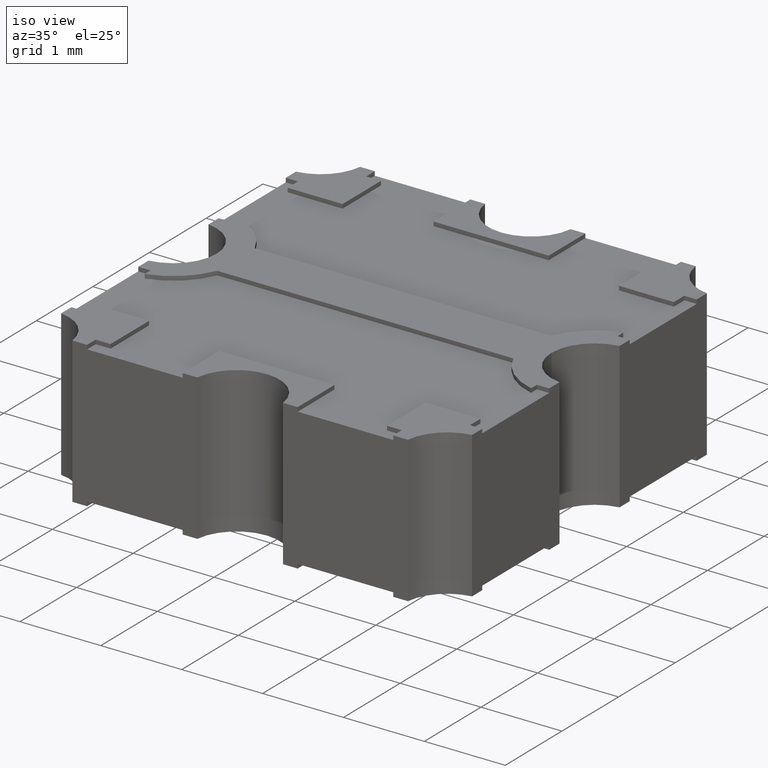
[diagram: clean part render]
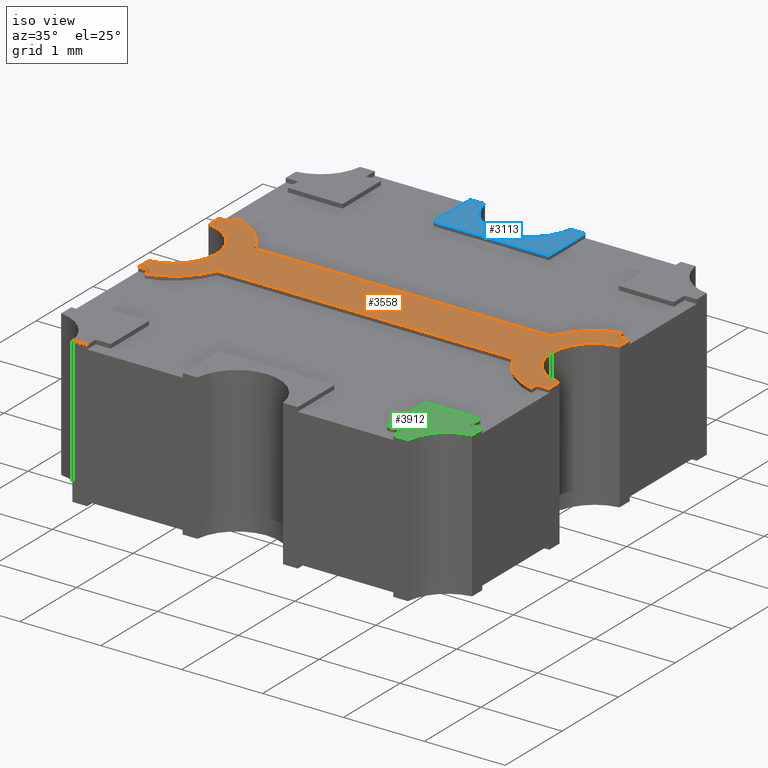
[diagram: same view with three faces highlighted in distinct colors, each labeled with its STEP entity id]
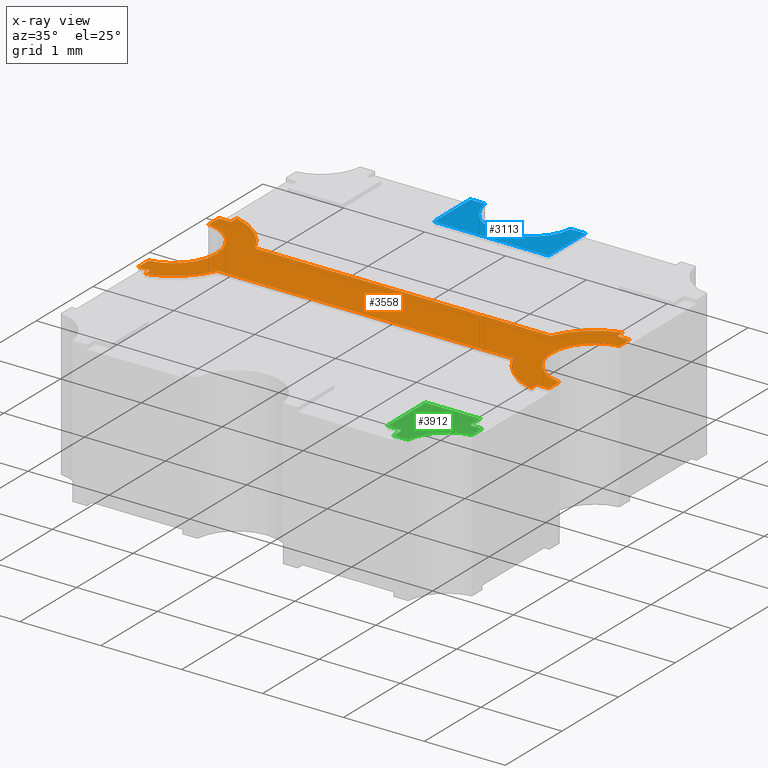
[diagram: x-ray of the same camera — body ghosted, the three highlighted faces saturated]
A machine part, iso view with three faces highlighted in distinct colors.
The next image is the same camera in x-ray (body ghosted, the three faces saturated) — at least one of them is partly hidden behind the body in this view.
Their STEP definitions:

[orange] entity #3558 — the highlighted planar face has unit normal (0, 0, 1).
#36 = EDGE_CURVE ( 'NONE', #2078, #3976, #2834, .T. ) ;
#50 = CARTESIAN_POINT ( 'NONE',  ( 0.1024999999999960387, -1.659618998713490475E-13, 0.07099999999999997979 ) ) ;
#84 = EDGE_CURVE ( 'NONE', #2199, #2078, #1196, .T. ) ;
#108 = VECTOR ( 'NONE', #442, 39.37007874015748143 ) ;
#124 = ORIENTED_EDGE ( 'NONE', *, *, #1939, .F. ) ;
#185 = CIRCLE ( 'NONE', #3332, 0.03314999999999710539 ) ;
#193 = VERTEX_POINT ( 'NONE', #499 ) ;
#203 = CARTESIAN_POINT ( 'NONE',  ( 0.09400000000000342804, 0.02799999999983613166, 0.07099999999999997979 ) ) ;
#290 = CARTESIAN_POINT ( 'NONE',  ( 0.1024999999999988698, 0.02799999999992067168, 0.07099999999999997979 ) ) ;
#307 = AXIS2_PLACEMENT_3D ( 'NONE', #1246, #3703, #3749 ) ;
#338 = DIRECTION ( 'NONE',  ( 0.000000000000000000, -1.000000000000000000, 0.000000000000000000 ) ) ;
#381 = VECTOR ( 'NONE', #1184, 39.37007874015748143 ) ;
#442 = DIRECTION ( 'NONE',  ( -0.000000000000000000, 1.000000000000000000, 0.000000000000000000 ) ) ;
#461 = DIRECTION ( 'NONE',  ( 0.000000000000000000, -1.000000000000000000, 0.000000000000000000 ) ) ;
#475 = DIRECTION ( 'NONE',  ( 0.000000000000000000, 0.000000000000000000, 1.000000000000000000 ) ) ;
#478 = VECTOR ( 'NONE', #3738, 39.37007874015748143 ) ;
#492 = CARTESIAN_POINT ( 'NONE',  ( -0.09400000000000004186, -8.057244176313536856E-14, 0.07099999999999997979 ) ) ;
#494 = EDGE_CURVE ( 'NONE', #193, #2134, #1532, .T. ) ;
#499 = CARTESIAN_POINT ( 'NONE',  ( 0.09400000000000342804, 0.03204173060228485137, 0.07099999999999997979 ) ) ;
#516 = LINE ( 'NONE', #3532, #3895 ) ;
#521 = LINE ( 'NONE', #800, #3518 ) ;
#537 = VERTEX_POINT ( 'NONE', #3029 ) ;
#560 = CARTESIAN_POINT ( 'NONE',  ( 0.09999999999999957534, -8.057244176313536856E-14, 0.07099999999999997979 ) ) ;
#590 = LINE ( 'NONE', #3607, #857 ) ;
#592 = ORIENTED_EDGE ( 'NONE', *, *, #2943, .T. ) ;
#663 = LINE ( 'NONE', #2189, #2936 ) ;
#681 = CARTESIAN_POINT ( 'NONE',  ( 0.1024999999999988698, -8.057244176313536856E-14, 0.07099999999999997979 ) ) ;
#690 = VERTEX_POINT ( 'NONE', #2852 ) ;
#697 = AXIS2_PLACEMENT_3D ( 'NONE', #2913, #2634, #3499 ) ;
#715 = EDGE_CURVE ( 'NONE', #1596, #1225, #3623, .T. ) ;
#724 = CARTESIAN_POINT ( 'NONE',  ( -0.1000000000000006023, -8.057244176313536856E-14, 0.07099999999999997979 ) ) ;
#732 = DIRECTION ( 'NONE',  ( 1.000000000000000000, 0.000000000000000000, -0.000000000000000000 ) ) ;
#784 = CARTESIAN_POINT ( 'NONE',  ( 0.09400000000000302558, -0.02800000000016334561, 0.07099999999999997979 ) ) ;
#785 = CARTESIAN_POINT ( 'NONE',  ( 0.09999999999999957534, 0.02085065946191258512, 0.07099999999999997979 ) ) ;
#788 = DIRECTION ( 'NONE',  ( 1.000000000000000000, 0.000000000000000000, -0.000000000000000000 ) ) ;
#800 = CARTESIAN_POINT ( 'NONE',  ( -0.09400000000000004186, -8.057244176313536856E-14, 0.07099999999999997979 ) ) ;
#830 = VECTOR ( 'NONE', #1791, 39.37007874015748143 ) ;
#842 = DIRECTION ( 'NONE',  ( 1.000000000000000000, 0.000000000000000000, 0.000000000000000000 ) ) ;
#857 = VECTOR ( 'NONE', #1782, 39.37007874015748143 ) ;
#883 = EDGE_CURVE ( 'NONE', #537, #2185, #516, .T. ) ;
#910 = CARTESIAN_POINT ( 'NONE',  ( -0.1000000000000006023, -0.02085065946207373747, 0.07099999999999997979 ) ) ;
#917 = ORIENTED_EDGE ( 'NONE', *, *, #2054, .F. ) ;
#948 = LINE ( 'NONE', #3422, #1066 ) ;
#989 = FACE_OUTER_BOUND ( 'NONE', #1061, .T. ) ;
#992 = VECTOR ( 'NONE', #1191, 39.37007874015748143 ) ;
#1006 = VERTEX_POINT ( 'NONE', #1018 ) ;
#1018 = CARTESIAN_POINT ( 'NONE',  ( -0.1000000000000006023, 0.02799999999992067168, 0.07099999999999997979 ) ) ;
#1024 = LINE ( 'NONE', #724, #478 ) ;
#1031 = AXIS2_PLACEMENT_3D ( 'NONE', #1434, #1742, #788 ) ;
#1061 = EDGE_LOOP ( 'NONE', ( #3052, #3408, #2861, #2537, #124, #2259, #2855, #2371, #3163, #2069, #3220, #592, #3479, #917, #2655, #2335, #2031, #2782, #2307, #2367, #1880 ) ) ;
#1066 = VECTOR ( 'NONE', #732, 39.37007874015748143 ) ;
#1114 = CARTESIAN_POINT ( 'NONE',  ( 0.07200536932509687960, 0.01299999999988812882, 0.07099999999999997979 ) ) ;
#1130 = CARTESIAN_POINT ( 'NONE',  ( 0.08149999999999883726, -8.057244176313536856E-14, 0.07099999999999997979 ) ) ;
#1144 = LINE ( 'NONE', #290, #2809 ) ;
#1184 = DIRECTION ( 'NONE',  ( 0.000000000000000000, 1.000000000000000000, 0.000000000000000000 ) ) ;
#1191 = DIRECTION ( 'NONE',  ( -0.000000000000000000, 1.000000000000000000, 0.000000000000000000 ) ) ;
#1196 = CIRCLE ( 'NONE', #2487, 0.03314999999999587721 ) ;
#1225 = VERTEX_POINT ( 'NONE', #1130 ) ;
#1231 = DIRECTION ( 'NONE',  ( 1.000000000000000000, 0.000000000000000000, -0.000000000000000000 ) ) ;
#1246 = CARTESIAN_POINT ( 'NONE',  ( 0.1024999999999960387, -1.659618998713490475E-13, 0.07099999999999997979 ) ) ;
#1288 = CARTESIAN_POINT ( 'NONE',  ( -0.1000000000000006023, -0.02800000000007848641, 0.07099999999999997979 ) ) ;
#1356 = DIRECTION ( 'NONE',  ( 0.000000000000000000, 0.000000000000000000, 1.000000000000000000 ) ) ;
#1364 = CARTESIAN_POINT ( 'NONE',  ( 0.1024999999999988698, -8.057244176313536856E-14, 0.07099999999999997979 ) ) ;
#1382 = EDGE_CURVE ( 'NONE', #2435, #2002, #663, .T. ) ;
#1430 = CARTESIAN_POINT ( 'NONE',  ( -0.09400000000000004186, -0.03204173060252699795, 0.07099999999999997979 ) ) ;
#1434 = CARTESIAN_POINT ( 'NONE',  ( 0.1024999999999988698, -8.057244176313536856E-14, 0.07099999999999997979 ) ) ;
#1478 = CARTESIAN_POINT ( 'NONE',  ( 0.09400000000000342804, -8.057244176313536856E-14, 0.07099999999999997979 ) ) ;
#1532 = CIRCLE ( 'NONE', #307, 0.03314999999999859032 ) ;
#1556 = LINE ( 'NONE', #1813, #3572 ) ;
#1596 = VERTEX_POINT ( 'NONE', #785 ) ;
#1655 = DIRECTION ( 'NONE',  ( 1.000000000000000000, 0.000000000000000000, 0.000000000000000000 ) ) ;
#1661 = EDGE_CURVE ( 'NONE', #3792, #690, #521, .T. ) ;
#1674 = EDGE_CURVE ( 'NONE', #2592, #2960, #2419, .T. ) ;
#1694 = VERTEX_POINT ( 'NONE', #1430 ) ;
#1695 = EDGE_CURVE ( 'NONE', #2388, #2199, #2671, .T. ) ;
#1724 = DIRECTION ( 'NONE',  ( 0.000000000000000000, -1.000000000000000000, 0.000000000000000000 ) ) ;
#1730 = DIRECTION ( 'NONE',  ( -1.000000000000000000, 0.000000000000000000, 0.000000000000000000 ) ) ;
#1742 = DIRECTION ( 'NONE',  ( 0.000000000000000000, 0.000000000000000000, 1.000000000000000000 ) ) ;
#1782 = DIRECTION ( 'NONE',  ( -1.000000000000000000, 0.000000000000000000, 0.000000000000000000 ) ) ;
#1791 = DIRECTION ( 'NONE',  ( 0.000000000000000000, -1.000000000000000000, 0.000000000000000000 ) ) ;
#1813 = CARTESIAN_POINT ( 'NONE',  ( 0.1024999999999988698, -0.02800000000016334561, 0.07099999999999997979 ) ) ;
#1834 = EDGE_CURVE ( 'NONE', #690, #1006, #1144, .T. ) ;
#1880 = ORIENTED_EDGE ( 'NONE', *, *, #3732, .T. ) ;
#1917 = PLANE ( 'NONE',  #1031 ) ;
#1939 = EDGE_CURVE ( 'NONE', #3923, #2592, #1024, .T. ) ;
#1980 = CARTESIAN_POINT ( 'NONE',  ( -0.09400000000000004186, -0.02800000000007848641, 0.07099999999999997979 ) ) ;
#1982 = DIRECTION ( 'NONE',  ( 1.000000000000000000, 0.000000000000000000, 0.000000000000000000 ) ) ;
#2002 = VERTEX_POINT ( 'NONE', #3105 ) ;
#2031 = ORIENTED_EDGE ( 'NONE', *, *, #883, .T. ) ;
#2054 = EDGE_CURVE ( 'NONE', #1225, #2435, #3687, .T. ) ;
#2058 = LINE ( 'NONE', #1478, #992 ) ;
#2069 = ORIENTED_EDGE ( 'NONE', *, *, #84, .T. ) ;
#2078 = VERTEX_POINT ( 'NONE', #3531 ) ;
#2085 = LINE ( 'NONE', #560, #830 ) ;
#2095 = VECTOR ( 'NONE', #3905, 39.37007874015748143 ) ;
#2134 = VERTEX_POINT ( 'NONE', #1114 ) ;
#2143 = CARTESIAN_POINT ( 'NONE',  ( -0.09400000000000004186, 0.03204173060236762544, 0.07099999999999997979 ) ) ;
#2185 = VERTEX_POINT ( 'NONE', #203 ) ;
#2189 = CARTESIAN_POINT ( 'NONE',  ( 0.09999999999999957534, -8.057244176313536856E-14, 0.07099999999999997979 ) ) ;
#2199 = VERTEX_POINT ( 'NONE', #2663 ) ;
#2232 = EDGE_CURVE ( 'NONE', #2134, #3135, #590, .T. ) ;
#2241 = CARTESIAN_POINT ( 'NONE',  ( -0.07200536932506612642, 0.01299999999988813749, 0.07099999999999997979 ) ) ;
#2259 = ORIENTED_EDGE ( 'NONE', *, *, #3447, .T. ) ;
#2262 = EDGE_CURVE ( 'NONE', #2185, #193, #2058, .T. ) ;
#2288 = CARTESIAN_POINT ( 'NONE',  ( 0.1024999999999988698, -0.01300000000007979668, 0.07099999999999997979 ) ) ;
#2307 = ORIENTED_EDGE ( 'NONE', *, *, #494, .T. ) ;
#2335 = ORIENTED_EDGE ( 'NONE', *, *, #3798, .F. ) ;
#2342 = AXIS2_PLACEMENT_3D ( 'NONE', #681, #3477, #1655 ) ;
#2367 = ORIENTED_EDGE ( 'NONE', *, *, #2232, .T. ) ;
#2371 = ORIENTED_EDGE ( 'NONE', *, *, #3605, .T. ) ;
#2388 = VERTEX_POINT ( 'NONE', #3206 ) ;
#2389 = LINE ( 'NONE', #2676, #381 ) ;
#2419 = CIRCLE ( 'NONE', #697, 0.02100000000000001171 ) ;
#2435 = VERTEX_POINT ( 'NONE', #3080 ) ;
#2487 = AXIS2_PLACEMENT_3D ( 'NONE', #50, #3478, #2529 ) ;
#2529 = DIRECTION ( 'NONE',  ( 1.000000000000000000, 0.000000000000000000, 0.000000000000000000 ) ) ;
#2537 = ORIENTED_EDGE ( 'NONE', *, *, #1674, .F. ) ;
#2576 = CARTESIAN_POINT ( 'NONE',  ( 0.09400000000000302558, -8.057244176313536856E-14, 0.07099999999999997979 ) ) ;
#2592 = VERTEX_POINT ( 'NONE', #910 ) ;
#2634 = DIRECTION ( 'NONE',  ( 0.000000000000000000, 0.000000000000000000, 1.000000000000000000 ) ) ;
#2655 = ORIENTED_EDGE ( 'NONE', *, *, #715, .F. ) ;
#2660 = AXIS2_PLACEMENT_3D ( 'NONE', #1364, #475, #1982 ) ;
#2663 = CARTESIAN_POINT ( 'NONE',  ( 0.07200536932504002230, -0.01300000000007976372, 0.07099999999999997979 ) ) ;
#2671 = LINE ( 'NONE', #2288, #2095 ) ;
#2676 = CARTESIAN_POINT ( 'NONE',  ( -0.1000000000000006023, -8.057244176313536856E-14, 0.07099999999999997979 ) ) ;
#2756 = AXIS2_PLACEMENT_3D ( 'NONE', #3334, #3616, #842 ) ;
#2782 = ORIENTED_EDGE ( 'NONE', *, *, #2262, .T. ) ;
#2809 = VECTOR ( 'NONE', #3596, 39.37007874015748143 ) ;
#2824 = CIRCLE ( 'NONE', #2756, 0.03314999999999750091 ) ;
#2834 = LINE ( 'NONE', #2576, #108 ) ;
#2852 = CARTESIAN_POINT ( 'NONE',  ( -0.09400000000000004186, 0.02799999999992067168, 0.07099999999999997979 ) ) ;
#2855 = ORIENTED_EDGE ( 'NONE', *, *, #3286, .T. ) ;
#2861 = ORIENTED_EDGE ( 'NONE', *, *, #3733, .F. ) ;
#2913 = CARTESIAN_POINT ( 'NONE',  ( -0.1024999999999996469, -8.057671027562545834E-14, 0.07099999999999997979 ) ) ;
#2936 = VECTOR ( 'NONE', #338, 39.37007874015748143 ) ;
#2943 = EDGE_CURVE ( 'NONE', #3976, #2002, #1556, .T. ) ;
#2960 = VERTEX_POINT ( 'NONE', #3020 ) ;
#3020 = CARTESIAN_POINT ( 'NONE',  ( -0.1000000000000006023, 0.02085065946191258165, 0.07099999999999997979 ) ) ;
#3029 = CARTESIAN_POINT ( 'NONE',  ( 0.09999999999999886757, 0.02799999999983613166, 0.07099999999999997979 ) ) ;
#3052 = ORIENTED_EDGE ( 'NONE', *, *, #1661, .T. ) ;
#3080 = CARTESIAN_POINT ( 'NONE',  ( 0.09999999999999957534, -0.02085065946207373053, 0.07099999999999997979 ) ) ;
#3105 = CARTESIAN_POINT ( 'NONE',  ( 0.09999999999999847899, -0.02800000000016334561, 0.07099999999999997979 ) ) ;
#3120 = VECTOR ( 'NONE', #1724, 39.37007874015748143 ) ;
#3135 = VERTEX_POINT ( 'NONE', #2241 ) ;
#3163 = ORIENTED_EDGE ( 'NONE', *, *, #1695, .T. ) ;
#3206 = CARTESIAN_POINT ( 'NONE',  ( -0.07200536932508015686, -0.01300000000007969780, 0.07099999999999997979 ) ) ;
#3220 = ORIENTED_EDGE ( 'NONE', *, *, #36, .T. ) ;
#3221 = DIRECTION ( 'NONE',  ( 1.000000000000000000, 0.000000000000000000, 0.000000000000000000 ) ) ;
#3234 = VERTEX_POINT ( 'NONE', #1980 ) ;
#3286 = EDGE_CURVE ( 'NONE', #3234, #1694, #3528, .T. ) ;
#3332 = AXIS2_PLACEMENT_3D ( 'NONE', #3543, #1356, #3221 ) ;
#3334 = CARTESIAN_POINT ( 'NONE',  ( -0.1025000000000007849, -7.988521125222919789E-14, 0.07099999999999997979 ) ) ;
#3408 = ORIENTED_EDGE ( 'NONE', *, *, #1834, .T. ) ;
#3422 = CARTESIAN_POINT ( 'NONE',  ( 0.1024999999999988698, -0.02800000000007848641, 0.07099999999999997979 ) ) ;
#3447 = EDGE_CURVE ( 'NONE', #3923, #3234, #948, .T. ) ;
#3477 = DIRECTION ( 'NONE',  ( 0.000000000000000000, 0.000000000000000000, 1.000000000000000000 ) ) ;
#3478 = DIRECTION ( 'NONE',  ( 0.000000000000000000, 0.000000000000000000, 1.000000000000000000 ) ) ;
#3479 = ORIENTED_EDGE ( 'NONE', *, *, #1382, .F. ) ;
#3499 = DIRECTION ( 'NONE',  ( 1.000000000000000000, 0.000000000000000000, 0.000000000000000000 ) ) ;
#3518 = VECTOR ( 'NONE', #461, 39.37007874015748143 ) ;
#3528 = LINE ( 'NONE', #492, #3120 ) ;
#3531 = CARTESIAN_POINT ( 'NONE',  ( 0.09400000000000302558, -0.03204173060261385209, 0.07099999999999997979 ) ) ;
#3532 = CARTESIAN_POINT ( 'NONE',  ( 0.1024999999999988698, 0.02799999999983613166, 0.07099999999999997979 ) ) ;
#3543 = CARTESIAN_POINT ( 'NONE',  ( -0.1025000000000007849, -7.988521125222919789E-14, 0.07099999999999997979 ) ) ;
#3558 = ADVANCED_FACE ( 'NONE', ( #989 ), #1917, .T. ) ;
#3572 = VECTOR ( 'NONE', #1231, 39.37007874015748143 ) ;
#3596 = DIRECTION ( 'NONE',  ( -1.000000000000000000, 0.000000000000000000, 0.000000000000000000 ) ) ;
#3605 = EDGE_CURVE ( 'NONE', #1694, #2388, #185, .T. ) ;
#3607 = CARTESIAN_POINT ( 'NONE',  ( 0.1024999999999988698, 0.01299999999988812882, 0.07099999999999997979 ) ) ;
#3616 = DIRECTION ( 'NONE',  ( 0.000000000000000000, 0.000000000000000000, 1.000000000000000000 ) ) ;
#3623 = CIRCLE ( 'NONE', #2342, 0.02100000000000002906 ) ;
#3687 = CIRCLE ( 'NONE', #2660, 0.02100000000000002906 ) ;
#3703 = DIRECTION ( 'NONE',  ( 0.000000000000000000, 0.000000000000000000, 1.000000000000000000 ) ) ;
#3732 = EDGE_CURVE ( 'NONE', #3135, #3792, #2824, .T. ) ;
#3733 = EDGE_CURVE ( 'NONE', #2960, #1006, #2389, .T. ) ;
#3738 = DIRECTION ( 'NONE',  ( 0.000000000000000000, 1.000000000000000000, 0.000000000000000000 ) ) ;
#3749 = DIRECTION ( 'NONE',  ( 1.000000000000000000, 0.000000000000000000, 0.000000000000000000 ) ) ;
#3792 = VERTEX_POINT ( 'NONE', #2143 ) ;
#3798 = EDGE_CURVE ( 'NONE', #537, #1596, #2085, .T. ) ;
#3895 = VECTOR ( 'NONE', #1730, 39.37007874015748143 ) ;
#3905 = DIRECTION ( 'NONE',  ( 1.000000000000000000, -5.631645117031696672E-16, 0.000000000000000000 ) ) ;
#3923 = VERTEX_POINT ( 'NONE', #1288 ) ;
#3976 = VERTEX_POINT ( 'NONE', #784 ) ;

[blue] entity #3113 — the highlighted planar face has unit normal (0, 0, 1).
#40 = DIRECTION ( 'NONE',  ( 0.000000000000000000, -1.000000000000000000, 0.000000000000000000 ) ) ;
#273 = LINE ( 'NONE', #2472, #3665 ) ;
#359 = DIRECTION ( 'NONE',  ( 1.000000000000000000, 0.000000000000000000, -0.000000000000000000 ) ) ;
#393 = FACE_OUTER_BOUND ( 'NONE', #1608, .T. ) ;
#458 = VERTEX_POINT ( 'NONE', #1207 ) ;
#463 = EDGE_CURVE ( 'NONE', #2990, #898, #273, .T. ) ;
#504 = VERTEX_POINT ( 'NONE', #2191 ) ;
#664 = ORIENTED_EDGE ( 'NONE', *, *, #3952, .F. ) ;
#706 = VERTEX_POINT ( 'NONE', #2284 ) ;
#779 = CARTESIAN_POINT ( 'NONE',  ( 0.02800000000024543620, 0.09999999999999747979, 0.07099999999999997979 ) ) ;
#843 = DIRECTION ( 'NONE',  ( 1.000000000000000000, 0.000000000000000000, -0.000000000000000000 ) ) ;
#898 = VERTEX_POINT ( 'NONE', #779 ) ;
#990 = EDGE_CURVE ( 'NONE', #706, #1772, #2757, .T. ) ;
#1194 = ORIENTED_EDGE ( 'NONE', *, *, #3560, .T. ) ;
#1207 = CARTESIAN_POINT ( 'NONE',  ( 0.02800000000024543620, 0.07449999999999884492, 0.07099999999999997979 ) ) ;
#1254 = EDGE_CURVE ( 'NONE', #706, #504, #3914, .T. ) ;
#1309 = LINE ( 'NONE', #2531, #2320 ) ;
#1369 = CARTESIAN_POINT ( 'NONE',  ( -2.159440468741797933E-14, 0.1024999999999966493, 0.07099999999999997979 ) ) ;
#1409 = DIRECTION ( 'NONE',  ( 0.000000000000000000, 0.000000000000000000, 1.000000000000000000 ) ) ;
#1493 = ORIENTED_EDGE ( 'NONE', *, *, #3858, .T. ) ;
#1505 = CARTESIAN_POINT ( 'NONE',  ( 0.1024999999999988698, 0.09999999999999747979, 0.07099999999999997979 ) ) ;
#1507 = DIRECTION ( 'NONE',  ( 1.000000000000000000, 0.000000000000000000, -0.000000000000000000 ) ) ;
#1608 = EDGE_LOOP ( 'NONE', ( #1639, #2854, #1493, #1194, #2083, #664 ) ) ;
#1639 = ORIENTED_EDGE ( 'NONE', *, *, #1254, .F. ) ;
#1645 = DIRECTION ( 'NONE',  ( 0.000000000000000000, 0.000000000000000000, 1.000000000000000000 ) ) ;
#1772 = VERTEX_POINT ( 'NONE', #3006 ) ;
#1877 = PLANE ( 'NONE',  #2144 ) ;
#1993 = DIRECTION ( 'NONE',  ( -0.000000000000000000, 1.000000000000000000, 0.000000000000000000 ) ) ;
#2083 = ORIENTED_EDGE ( 'NONE', *, *, #463, .F. ) ;
#2144 = AXIS2_PLACEMENT_3D ( 'NONE', #3169, #1645, #2873 ) ;
#2191 = CARTESIAN_POINT ( 'NONE',  ( -0.02085065946201464238, 0.09999999999999747979, 0.07099999999999997979 ) ) ;
#2284 = CARTESIAN_POINT ( 'NONE',  ( -0.02799999999975905096, 0.09999999999999747979, 0.07099999999999997979 ) ) ;
#2320 = VECTOR ( 'NONE', #359, 39.37007874015748143 ) ;
#2373 = AXIS2_PLACEMENT_3D ( 'NONE', #1369, #1409, #2954 ) ;
#2440 = CARTESIAN_POINT ( 'NONE',  ( 0.02085065946197144082, 0.09999999999999747979, 0.07099999999999997979 ) ) ;
#2472 = CARTESIAN_POINT ( 'NONE',  ( 0.1024999999999988698, 0.09999999999999747979, 0.07099999999999997979 ) ) ;
#2531 = CARTESIAN_POINT ( 'NONE',  ( 0.1024999999999988698, 0.07449999999999884492, 0.07099999999999997979 ) ) ;
#2639 = CARTESIAN_POINT ( 'NONE',  ( 0.02800000000024543620, -8.057244176313536856E-14, 0.07099999999999997979 ) ) ;
#2694 = CIRCLE ( 'NONE', #2373, 0.02099999999999990416 ) ;
#2757 = LINE ( 'NONE', #3449, #3570 ) ;
#2854 = ORIENTED_EDGE ( 'NONE', *, *, #990, .T. ) ;
#2873 = DIRECTION ( 'NONE',  ( 1.000000000000000000, 0.000000000000000000, -0.000000000000000000 ) ) ;
#2954 = DIRECTION ( 'NONE',  ( 1.000000000000000000, 0.000000000000000000, 0.000000000000000000 ) ) ;
#2990 = VERTEX_POINT ( 'NONE', #2440 ) ;
#3006 = CARTESIAN_POINT ( 'NONE',  ( -0.02799999999975905096, 0.07449999999999884492, 0.07099999999999997979 ) ) ;
#3113 = ADVANCED_FACE ( 'NONE', ( #393 ), #1877, .T. ) ;
#3149 = VECTOR ( 'NONE', #1993, 39.37007874015748143 ) ;
#3169 = CARTESIAN_POINT ( 'NONE',  ( 0.1024999999999988698, -8.057244176313536856E-14, 0.07099999999999997979 ) ) ;
#3260 = VECTOR ( 'NONE', #843, 39.37007874015748143 ) ;
#3449 = CARTESIAN_POINT ( 'NONE',  ( -0.02799999999975905096, -8.057244176313536856E-14, 0.07099999999999997979 ) ) ;
#3560 = EDGE_CURVE ( 'NONE', #458, #898, #3584, .T. ) ;
#3570 = VECTOR ( 'NONE', #40, 39.37007874015748143 ) ;
#3584 = LINE ( 'NONE', #2639, #3149 ) ;
#3665 = VECTOR ( 'NONE', #1507, 39.37007874015748143 ) ;
#3858 = EDGE_CURVE ( 'NONE', #1772, #458, #1309, .T. ) ;
#3914 = LINE ( 'NONE', #1505, #3260 ) ;
#3952 = EDGE_CURVE ( 'NONE', #504, #2990, #2694, .T. ) ;

[green] entity #3912 — the highlighted planar face has unit normal (0, 0, 1).
#8 = PLANE ( 'NONE',  #2173 ) ;
#12 = CARTESIAN_POINT ( 'NONE',  ( 0.07450000000001405498, -0.09400000000000105493, 0.07099999999999997979 ) ) ;
#78 = ORIENTED_EDGE ( 'NONE', *, *, #1353, .F. ) ;
#162 = EDGE_CURVE ( 'NONE', #3103, #2496, #479, .T. ) ;
#174 = EDGE_CURVE ( 'NONE', #1335, #269, #3254, .T. ) ;
#206 = CARTESIAN_POINT ( 'NONE',  ( 0.1024999999999988698, -0.07450000000000209233, 0.07099999999999997979 ) ) ;
#217 = LINE ( 'NONE', #2735, #1017 ) ;
#239 = DIRECTION ( 'NONE',  ( -1.000000000000000000, 0.000000000000000000, 0.000000000000000000 ) ) ;
#257 = CARTESIAN_POINT ( 'NONE',  ( 0.1024999999999988698, -0.06725000000000122546, 0.07099999999999997979 ) ) ;
#269 = VERTEX_POINT ( 'NONE', #3936 ) ;
#302 = CARTESIAN_POINT ( 'NONE',  ( 0.09400000000001834666, -0.06725000000000122546, 0.07099999999999997979 ) ) ;
#323 = DIRECTION ( 'NONE',  ( 1.000000000000000000, 0.000000000000000000, 0.000000000000000000 ) ) ;
#354 = DIRECTION ( 'NONE',  ( 1.000000000000000000, 0.000000000000000000, -0.000000000000000000 ) ) ;
#479 = LINE ( 'NONE', #206, #1332 ) ;
#486 = VERTEX_POINT ( 'NONE', #12 ) ;
#489 = AXIS2_PLACEMENT_3D ( 'NONE', #2740, #1856, #323 ) ;
#527 = ORIENTED_EDGE ( 'NONE', *, *, #174, .T. ) ;
#611 = VECTOR ( 'NONE', #239, 39.37007874015748143 ) ;
#768 = ORIENTED_EDGE ( 'NONE', *, *, #1273, .T. ) ;
#806 = LINE ( 'NONE', #823, #957 ) ;
#823 = CARTESIAN_POINT ( 'NONE',  ( 0.09400000000001834666, -8.057244176313536856E-14, 0.07099999999999997979 ) ) ;
#873 = EDGE_LOOP ( 'NONE', ( #78, #3139, #1546, #3634, #527, #3892, #768, #1717, #3081 ) ) ;
#957 = VECTOR ( 'NONE', #3851, 39.37007874015748143 ) ;
#966 = LINE ( 'NONE', #3072, #1198 ) ;
#1017 = VECTOR ( 'NONE', #2374, 39.37007874015748143 ) ;
#1176 = VERTEX_POINT ( 'NONE', #2068 ) ;
#1177 = CARTESIAN_POINT ( 'NONE',  ( 0.09400000000001834666, -0.07450000000000209233, 0.07099999999999997979 ) ) ;
#1198 = VECTOR ( 'NONE', #2470, 39.37007874015748143 ) ;
#1273 = EDGE_CURVE ( 'NONE', #486, #1433, #217, .T. ) ;
#1332 = VECTOR ( 'NONE', #3577, 39.37007874015748143 ) ;
#1333 = FACE_OUTER_BOUND ( 'NONE', #873, .T. ) ;
#1335 = VERTEX_POINT ( 'NONE', #2434 ) ;
#1353 = EDGE_CURVE ( 'NONE', #3103, #1952, #966, .T. ) ;
#1433 = VERTEX_POINT ( 'NONE', #1828 ) ;
#1546 = ORIENTED_EDGE ( 'NONE', *, *, #3604, .T. ) ;
#1687 = LINE ( 'NONE', #2261, #2721 ) ;
#1717 = ORIENTED_EDGE ( 'NONE', *, *, #2635, .F. ) ;
#1732 = CARTESIAN_POINT ( 'NONE',  ( 0.06725000000001496447, -8.057244176313536856E-14, 0.07099999999999997979 ) ) ;
#1828 = CARTESIAN_POINT ( 'NONE',  ( 0.07450000000001405498, -0.1000000000000025036, 0.07099999999999997979 ) ) ;
#1856 = DIRECTION ( 'NONE',  ( 0.000000000000000000, 0.000000000000000000, 1.000000000000000000 ) ) ;
#1952 = VERTEX_POINT ( 'NONE', #2182 ) ;
#2008 = EDGE_CURVE ( 'NONE', #269, #486, #3431, .T. ) ;
#2068 = CARTESIAN_POINT ( 'NONE',  ( 0.08164934053800582126, -0.1000000000000025036, 0.07099999999999997979 ) ) ;
#2173 = AXIS2_PLACEMENT_3D ( 'NONE', #2205, #3440, #2250 ) ;
#2182 = CARTESIAN_POINT ( 'NONE',  ( 0.09999999999999957534, -0.08164934053800838865, 0.07099999999999997979 ) ) ;
#2205 = CARTESIAN_POINT ( 'NONE',  ( 0.1024999999999988698, -8.057244176313536856E-14, 0.07099999999999997979 ) ) ;
#2222 = DIRECTION ( 'NONE',  ( -1.000000000000000000, 0.000000000000000000, 0.000000000000000000 ) ) ;
#2250 = DIRECTION ( 'NONE',  ( 1.000000000000000000, 0.000000000000000000, -0.000000000000000000 ) ) ;
#2260 = CARTESIAN_POINT ( 'NONE',  ( 0.09999999999999957534, -0.07450000000000209233, 0.07099999999999997979 ) ) ;
#2261 = CARTESIAN_POINT ( 'NONE',  ( 0.1024999999999988698, -0.1000000000000025036, 0.07099999999999997979 ) ) ;
#2280 = CIRCLE ( 'NONE', #489, 0.02099999999999995967 ) ;
#2374 = DIRECTION ( 'NONE',  ( 0.000000000000000000, -1.000000000000000000, 0.000000000000000000 ) ) ;
#2434 = CARTESIAN_POINT ( 'NONE',  ( 0.06725000000001496447, -0.06725000000000122546, 0.07099999999999997979 ) ) ;
#2470 = DIRECTION ( 'NONE',  ( 0.000000000000000000, -1.000000000000000000, 0.000000000000000000 ) ) ;
#2496 = VERTEX_POINT ( 'NONE', #1177 ) ;
#2527 = CARTESIAN_POINT ( 'NONE',  ( 0.1024999999999988698, -0.09400000000000105493, 0.07099999999999997979 ) ) ;
#2635 = EDGE_CURVE ( 'NONE', #1176, #1433, #1687, .T. ) ;
#2721 = VECTOR ( 'NONE', #2222, 39.37007874015748143 ) ;
#2735 = CARTESIAN_POINT ( 'NONE',  ( 0.07450000000001405498, -8.057244176313536856E-14, 0.07099999999999997979 ) ) ;
#2740 = CARTESIAN_POINT ( 'NONE',  ( 0.1024999999999989392, -0.1025000000000014649, 0.07099999999999997979 ) ) ;
#2942 = EDGE_CURVE ( 'NONE', #1952, #1176, #2280, .T. ) ;
#3072 = CARTESIAN_POINT ( 'NONE',  ( 0.09999999999999957534, -8.057244176313536856E-14, 0.07099999999999997979 ) ) ;
#3081 = ORIENTED_EDGE ( 'NONE', *, *, #2942, .F. ) ;
#3103 = VERTEX_POINT ( 'NONE', #2260 ) ;
#3139 = ORIENTED_EDGE ( 'NONE', *, *, #162, .T. ) ;
#3254 = LINE ( 'NONE', #1732, #3378 ) ;
#3301 = VECTOR ( 'NONE', #354, 39.37007874015748143 ) ;
#3308 = DIRECTION ( 'NONE',  ( 0.000000000000000000, -1.000000000000000000, 0.000000000000000000 ) ) ;
#3317 = EDGE_CURVE ( 'NONE', #3427, #1335, #3621, .T. ) ;
#3378 = VECTOR ( 'NONE', #3308, 39.37007874015748143 ) ;
#3427 = VERTEX_POINT ( 'NONE', #302 ) ;
#3431 = LINE ( 'NONE', #2527, #3301 ) ;
#3440 = DIRECTION ( 'NONE',  ( 0.000000000000000000, 0.000000000000000000, 1.000000000000000000 ) ) ;
#3577 = DIRECTION ( 'NONE',  ( -1.000000000000000000, 0.000000000000000000, 0.000000000000000000 ) ) ;
#3604 = EDGE_CURVE ( 'NONE', #2496, #3427, #806, .T. ) ;
#3621 = LINE ( 'NONE', #257, #611 ) ;
#3634 = ORIENTED_EDGE ( 'NONE', *, *, #3317, .T. ) ;
#3851 = DIRECTION ( 'NONE',  ( -0.000000000000000000, 1.000000000000000000, 0.000000000000000000 ) ) ;
#3892 = ORIENTED_EDGE ( 'NONE', *, *, #2008, .T. ) ;
#3912 = ADVANCED_FACE ( 'NONE', ( #1333 ), #8, .T. ) ;
#3936 = CARTESIAN_POINT ( 'NONE',  ( 0.06725000000001496447, -0.09400000000000105493, 0.07099999999999997979 ) ) ;